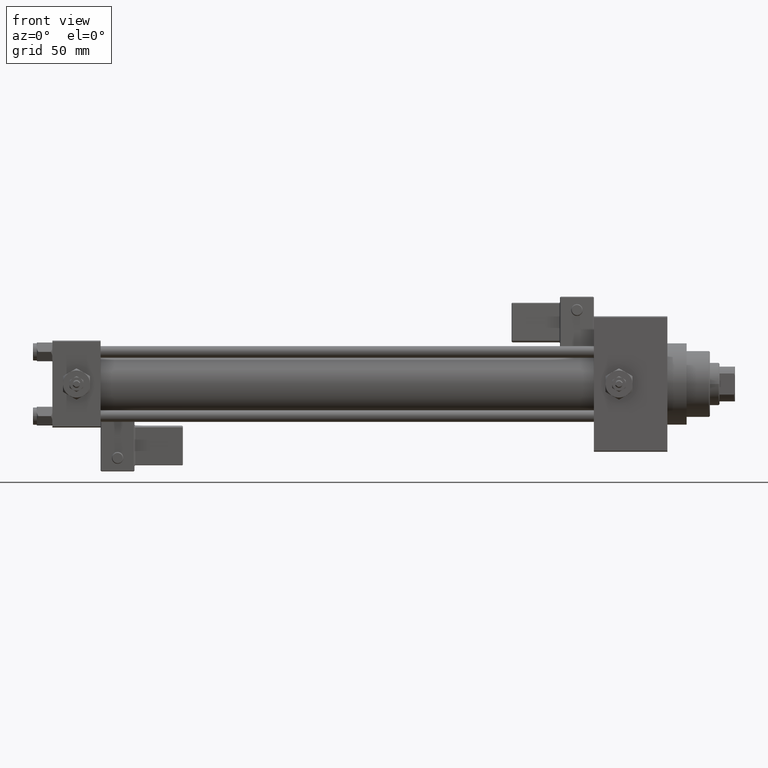
[diagram: clean part render]
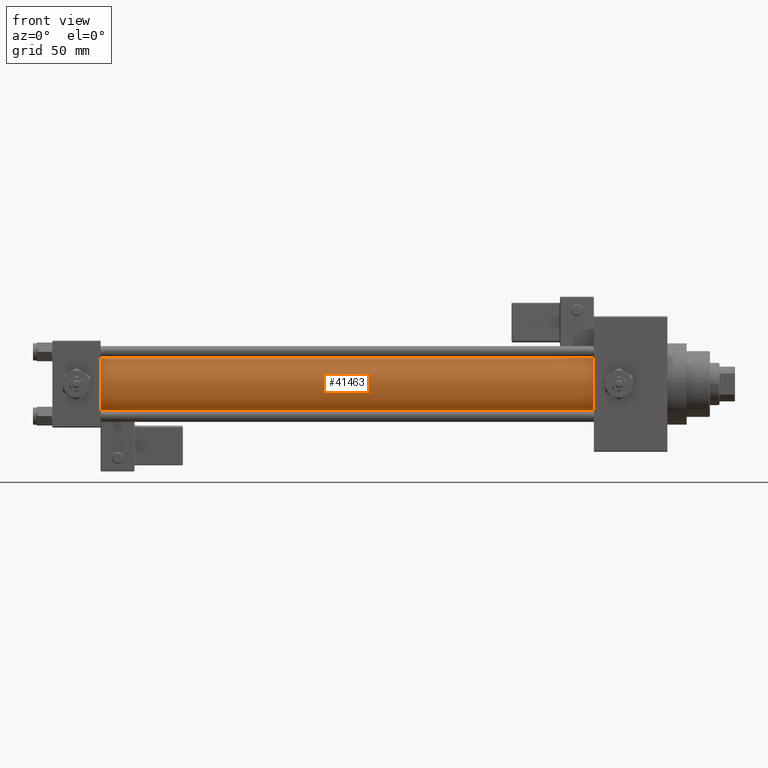
[diagram: same view with one face highlighted and labeled with its STEP entity id]
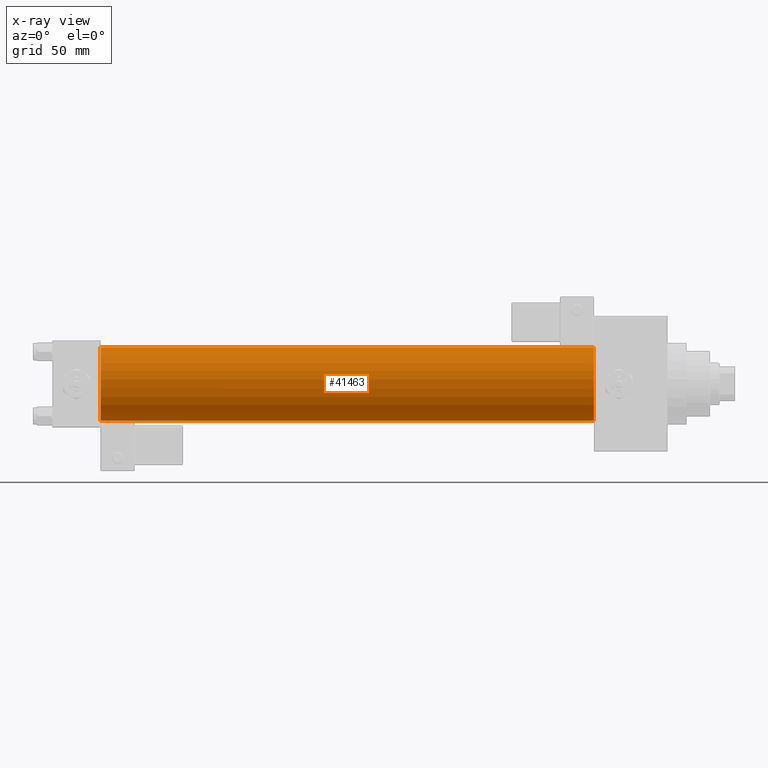
[diagram: x-ray of the same camera — body ghosted, the highlighted face saturated]
A machine part, front view. The second image highlights one B-rep face of the part: STEP entity #41463.
The next image is the same camera in x-ray: the body ghosted, the highlighted face saturated — about 0% of this face is hidden behind the body in this view.
In plain terms, the highlighted cylindrical surface (partial cylindrical patch) has radius 19 mm, axis along (-1, -0, -0).
Its self-contained STEP definition (entity closure, byte-faithful):
#1847 = ORIENTED_EDGE ( 'NONE', *, *, #20389, .F. ) ;
#2344 = EDGE_CURVE ( 'NONE', #36884, #30109, #19199, .T. ) ;
#3401 = AXIS2_PLACEMENT_3D ( 'NONE', #40204, #4626, #13416 ) ;
#4626 = DIRECTION ( 'NONE',  ( -1.000000000000000000, -0.000000000000000000, -0.000000000000000000 ) ) ;
#6701 = LINE ( 'NONE', #14472, #43819 ) ;
#10264 = CARTESIAN_POINT ( 'NONE',  ( 280.0000000000000000, -2.602085213965210642E-15, 0.000000000000000000 ) ) ;
#13416 = DIRECTION ( 'NONE',  ( 0.000000000000000000, 0.000000000000000000, 1.000000000000000000 ) ) ;
#14472 = CARTESIAN_POINT ( 'NONE',  ( 280.0000000000000000, -2.752562955852396712E-16, -19.00000000000000000 ) ) ;
#16378 = DIRECTION ( 'NONE',  ( -1.000000000000000000, -0.000000000000000000, -0.000000000000000000 ) ) ;
#16538 = CARTESIAN_POINT ( 'NONE',  ( 25.00000000000002132, -2.752562955852396712E-16, -19.00000000000000000 ) ) ;
#19199 = CIRCLE ( 'NONE', #29142, 19.00000000000000000 ) ;
#20389 = EDGE_CURVE ( 'NONE', #30109, #43364, #6701, .T. ) ;
#20958 = FACE_OUTER_BOUND ( 'NONE', #36770, .T. ) ;
#21049 = LINE ( 'NONE', #44695, #45335 ) ;
#21939 = DIRECTION ( 'NONE',  ( 0.000000000000000000, 0.000000000000000000, -1.000000000000000000 ) ) ;
#22201 = DIRECTION ( 'NONE',  ( 1.000000000000000000, 0.000000000000000000, 0.000000000000000000 ) ) ;
#24297 = CARTESIAN_POINT ( 'NONE',  ( 25.00000000000002132, -2.602085213965210642E-15, 19.00000000000000000 ) ) ;
#27128 = EDGE_CURVE ( 'NONE', #44509, #43364, #32807, .T. ) ;
#29142 = AXIS2_PLACEMENT_3D ( 'NONE', #10264, #22201, #21939 ) ;
#30109 = VERTEX_POINT ( 'NONE', #32563 ) ;
#30377 = EDGE_CURVE ( 'NONE', #36884, #44509, #21049, .T. ) ;
#31952 = ORIENTED_EDGE ( 'NONE', *, *, #2344, .F. ) ;
#32563 = CARTESIAN_POINT ( 'NONE',  ( 280.0000000000000000, -2.752562955852396712E-16, -19.00000000000000000 ) ) ;
#32754 = ORIENTED_EDGE ( 'NONE', *, *, #27128, .T. ) ;
#32807 = CIRCLE ( 'NONE', #39448, 19.00000000000000000 ) ;
#36770 = EDGE_LOOP ( 'NONE', ( #1847, #31952, #41292, #32754 ) ) ;
#36884 = VERTEX_POINT ( 'NONE', #47442 ) ;
#39448 = AXIS2_PLACEMENT_3D ( 'NONE', #45826, #50479, #45563 ) ;
#40204 = CARTESIAN_POINT ( 'NONE',  ( 280.0000000000000000, -2.602085213965210642E-15, 0.000000000000000000 ) ) ;
#40460 = CYLINDRICAL_SURFACE ( 'NONE', #3401, 19.00000000000000000 ) ;
#41292 = ORIENTED_EDGE ( 'NONE', *, *, #30377, .T. ) ;
#41463 = ADVANCED_FACE ( 'NONE', ( #20958 ), #40460, .T. ) ;
#43364 = VERTEX_POINT ( 'NONE', #16538 ) ;
#43819 = VECTOR ( 'NONE', #45919, 1000.000000000000000 ) ;
#44509 = VERTEX_POINT ( 'NONE', #24297 ) ;
#44695 = CARTESIAN_POINT ( 'NONE',  ( 280.0000000000000000, -2.602085213965210642E-15, 19.00000000000000000 ) ) ;
#45335 = VECTOR ( 'NONE', #16378, 1000.000000000000000 ) ;
#45563 = DIRECTION ( 'NONE',  ( 0.000000000000000000, 0.000000000000000000, 1.000000000000000000 ) ) ;
#45826 = CARTESIAN_POINT ( 'NONE',  ( 25.00000000000002132, -2.602085213965210642E-15, 0.000000000000000000 ) ) ;
#45919 = DIRECTION ( 'NONE',  ( -1.000000000000000000, -0.000000000000000000, -0.000000000000000000 ) ) ;
#47442 = CARTESIAN_POINT ( 'NONE',  ( 280.0000000000000000, -2.602085213965210642E-15, 19.00000000000000000 ) ) ;
#50479 = DIRECTION ( 'NONE',  ( 1.000000000000000000, -0.000000000000000000, 0.000000000000000000 ) ) ;